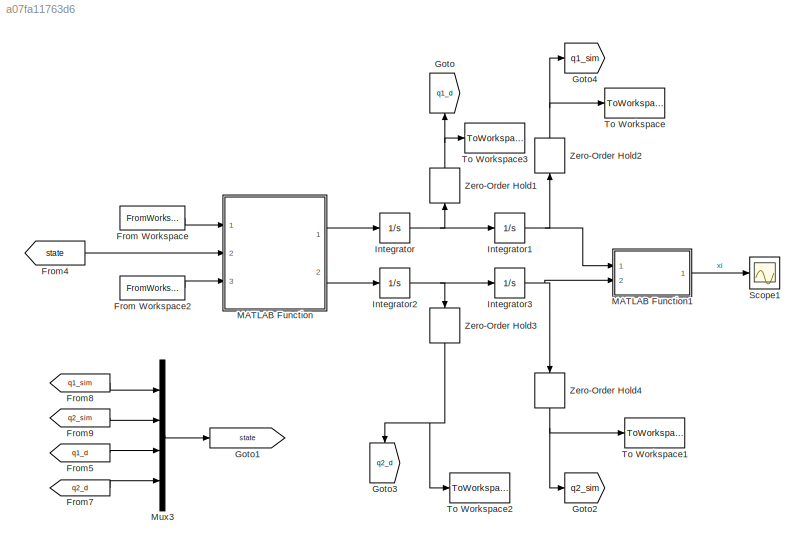
MODEL slx_a07fa11763d6
KIND model
CONFIG AbsTol = auto
CONFIG EnableMultiTasking = off
CONFIG FixedStep = 0.02
CONFIG MaxStep = auto
CONFIG MinStep = auto
CONFIG RelTol = 1e-3
CONFIG SampleTimeConstraint = Unconstrained
CONFIG Solver = ode3
CONFIG SolverName = ode3
CONFIG StartTime = 0.0
CONFIG StopTime = 0.08
BLOCK [FromWorkspace] From Workspace
  SampleTime = 0
  VariableName = tau_sim
  ZeroCross = on
BLOCK [FromWorkspace] From Workspace2
  SampleTime = 0
  VariableName = dist_sim
  ZeroCross = on
BLOCK [From] From4
  GotoTag = state
BLOCK [From] From5
  GotoTag = q1_d
BLOCK [From] From7
  GotoTag = q2_d
BLOCK [From] From8
  GotoTag = q1_sim
BLOCK [From] From9
  GotoTag = q2_sim
BLOCK [Goto] Goto
  GotoTag = q1_d
BLOCK [Goto] Goto1
  GotoTag = state
BLOCK [Goto] Goto2
  GotoTag = q2_sim
BLOCK [Goto] Goto3
  GotoTag = q2_d
BLOCK [Goto] Goto4
  GotoTag = q1_sim
BLOCK [Integrator] Integrator
  InitialCondition = q1_d_in
  Ports = [1, 1]
BLOCK [Integrator] Integrator1
  InitialCondition = q1_in
  Ports = [1, 1]
BLOCK [Integrator] Integrator2
  InitialCondition = q2_d_in
  Ports = [1, 1]
BLOCK [Integrator] Integrator3
  InitialCondition = q2_in
  Ports = [1, 1]
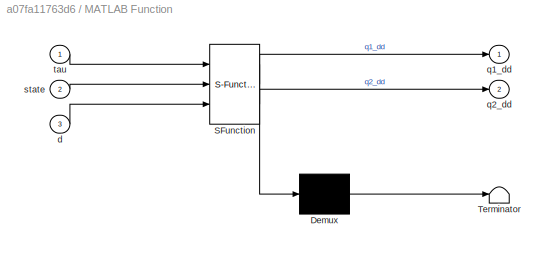
BLOCK [SubSystem] MATLAB Function
  ErrorFcn = Stateflow.Translate.translate
  PermitHierarchicalResolution = ExplicitOnly
  Ports = [3, 2]
  RequestExecContextInheritance = off
  SFBlockType = MATLAB Function
  TreatAsAtomicUnit = on
BLOCK [Demux] MATLAB Function/ Demux 
  Outputs = 1
  Ports = [1, 1]
BLOCK [S-Function] MATLAB Function/ SFunction 
  EnableBusSupport = off
  FunctionName = sf_sfun
  PortCounts = [3 3]
  Ports = [3, 3]
  SFcnIsStateOwnerBlock = off
  SFunctionDeploymentMode = off
  Tag = Stateflow S-Function Model_sim_2018 2
BLOCK [Terminator] MATLAB Function/ Terminator 
BLOCK [Inport] MATLAB Function/d
  IconDisplay = Port number
  Port = 3
BLOCK [Outport] MATLAB Function/q1_dd
  IconDisplay = Port number
BLOCK [Outport] MATLAB Function/q2_dd
  IconDisplay = Port number
  Port = 2
BLOCK [Inport] MATLAB Function/state
  IconDisplay = Port number
  Port = 2
BLOCK [Inport] MATLAB Function/tau
  IconDisplay = Port number
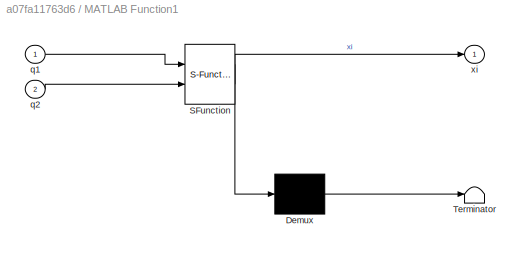
BLOCK [SubSystem] MATLAB Function1
  ErrorFcn = Stateflow.Translate.translate
  PermitHierarchicalResolution = ExplicitOnly
  Ports = [2, 1]
  RequestExecContextInheritance = off
  SFBlockType = MATLAB Function
  TreatAsAtomicUnit = on
BLOCK [Demux] MATLAB Function1/ Demux 
  Outputs = 1
  Ports = [1, 1]
BLOCK [S-Function] MATLAB Function1/ SFunction 
  EnableBusSupport = off
  FunctionName = sf_sfun
  PortCounts = [2 2]
  Ports = [2, 2]
  SFcnIsStateOwnerBlock = off
  SFunctionDeploymentMode = off
  Tag = Stateflow S-Function Model_sim_2018 8
BLOCK [Terminator] MATLAB Function1/ Terminator 
BLOCK [Inport] MATLAB Function1/q1
  IconDisplay = Port number
BLOCK [Inport] MATLAB Function1/q2
  IconDisplay = Port number
  Port = 2
BLOCK [Outport] MATLAB Function1/xi
  IconDisplay = Port number
BLOCK [Mux] Mux3
  DisplayOption = bar
  Ports = [4, 1]
BLOCK [Scope] Scope1
  Floating = off
  NumInputPorts = 1
  Ports = [1]
  ScopeSpecificationString = Simulink.scopes.TimeScopeBlockCfg('CurrentConfiguration', extmgr.ConfigurationSet(extmgr.Configuration('Core','General UI',true),extmgr.Configuration('Core','Source UI',true),extmgr.Configuration('Sources','WiredSimulink',true,'DataLoggingVariableName','ScopeData1'),extmgr.Configuration('Visuals','Time Domain',true,'SerializedDisplays',{struct('MinYLimReal','-0.01839','MaxYLimReal','0.16561','YLab...<+1398ch>
BLOCK [ToWorkspace] To Workspace
  FixptAsFi = on
  MaxDataPoints = inf
  Ports = [1]
  SampleTime = -1
  VariableName = q1_sim
BLOCK [ToWorkspace] To Workspace1
  FixptAsFi = on
  MaxDataPoints = inf
  Ports = [1]
  SampleTime = -1
  VariableName = q2_sim
BLOCK [ToWorkspace] To Workspace2
  FixptAsFi = on
  MaxDataPoints = inf
  Ports = [1]
  SampleTime = -1
  VariableName = q2d_sim
BLOCK [ToWorkspace] To Workspace3
  FixptAsFi = on
  MaxDataPoints = inf
  Ports = [1]
  SampleTime = -1
  VariableName = q1d_sim
BLOCK [ZeroOrderHold] Zero-Order Hold1
  SampleTime = Ts
BLOCK [ZeroOrderHold] Zero-Order Hold2
  SampleTime = Ts
BLOCK [ZeroOrderHold] Zero-Order Hold3
  SampleTime = Ts
BLOCK [ZeroOrderHold] Zero-Order Hold4
  SampleTime = Ts
LINE From Workspace2:1 -> MATLAB Function:3
LINE From Workspace:1 -> MATLAB Function:1
LINE From4:1 -> MATLAB Function:2
LINE From5:1 -> Mux3:3
LINE From7:1 -> Mux3:4
LINE From8:1 -> Mux3:1
LINE From9:1 -> Mux3:2
NET Integrator1:1 -> MATLAB Function1:1, Zero-Order Hold2:1
NET Integrator2:1 -> Integrator3:1, Zero-Order Hold3:1
NET Integrator3:1 -> MATLAB Function1:2, Zero-Order Hold4:1
NET Integrator:1 -> Integrator1:1, Zero-Order Hold1:1
LINE MATLAB Function1:1 -> Scope1:1
LINE MATLAB Function:1 -> Integrator:1
LINE MATLAB Function:2 -> Integrator2:1
LINE Mux3:1 -> Goto1:1
NET Zero-Order Hold1:1 -> Goto:1, To Workspace3:1
NET Zero-Order Hold2:1 -> Goto4:1, To Workspace:1
NET Zero-Order Hold3:1 -> Goto3:1, To Workspace2:1
NET Zero-Order Hold4:1 -> Goto2:1, To Workspace1:1
note: NET lines group one-source signal fan-out (src -> all destinations, sorted); 1:1 wires keep LINE
CHART MATLAB Function states=1 transitions=1
  STATE_LABEL 'eML_blk_kernel()'
  STATE_LABEL 'SCRIPT:\nfunction [q1_dd, q2_dd] = dynamics(tau, state, d)\n\nF_hx = d(1);\nF_hz = d(2);\nm_load = d(3);\nq1  = state(1);\nq2 = state(2);\nq1_d = state(3);\nq2_d = state(4); \n\n%robot parameters\ng   = 9.81;\nJ1  = 10;   %inertia link 1\nJ2  = 10;   %inertia link 2\nm1  = 50;   %mass link 1\nm2  = 50;   %mass link 2\na1  = 1.2;    %lenght link 1\na2  = 1;  %length link 2\nac1  = a1/2; %centre of mass link 1\nac2  = ...<+919ch>'
CHART MATLAB Function1 states=1 transitions=1
  STATE_LABEL 'eML_blk_kernel()'
  STATE_LABEL 'SCRIPT:\nfunction xi  = direct_kin(q1, q2)\n%robot parameters\na1  = 1.2;    %lenght link 1\na2  = 1;  %length link 2\n\n%kinematic functions\nc1= cos(q1);\ns1= sin(q1);\nc2= cos(q2);\ns2= sin(q2);\nc12= cos(q1+q2);\ns12= sin(q1+q2);\n\n% Computation of end effector quantities given the measure joints\n% quantities\nif q1 == 0 && q2 == 0\n    xe = 0;\n    ze = 0;\n   \nelse \n    xe = 0.5 + a1*c1 + a2*c12;\n    ze = a1...<+51ch>'
